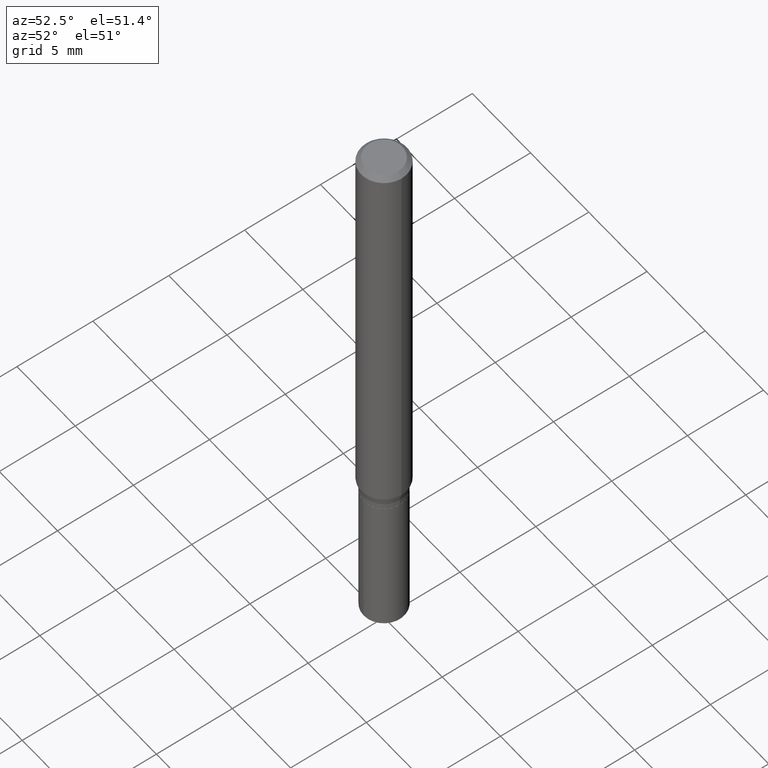
[diagram: clean part render]
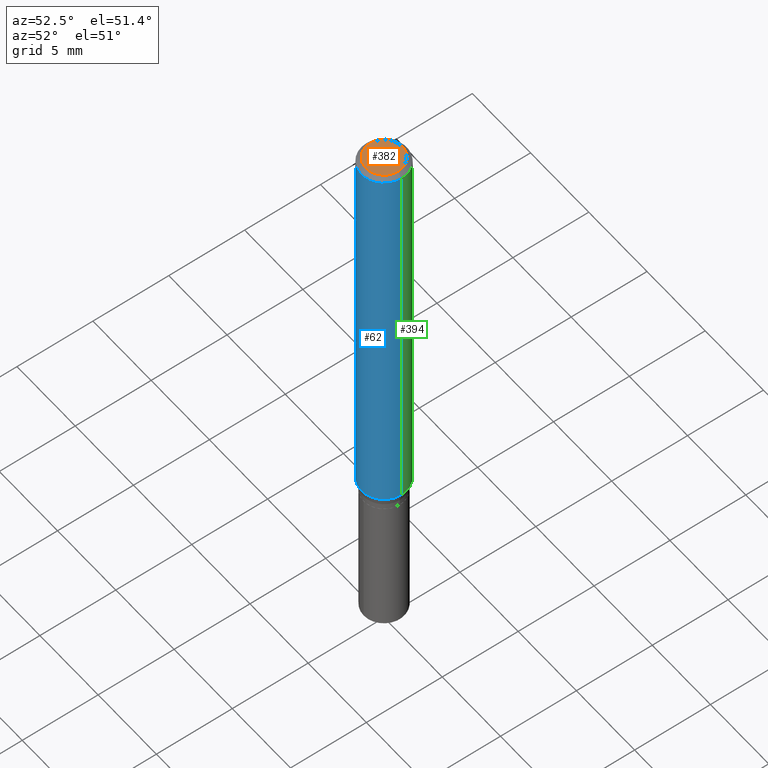
[diagram: same view with three faces highlighted in distinct colors, each labeled with its STEP entity id]
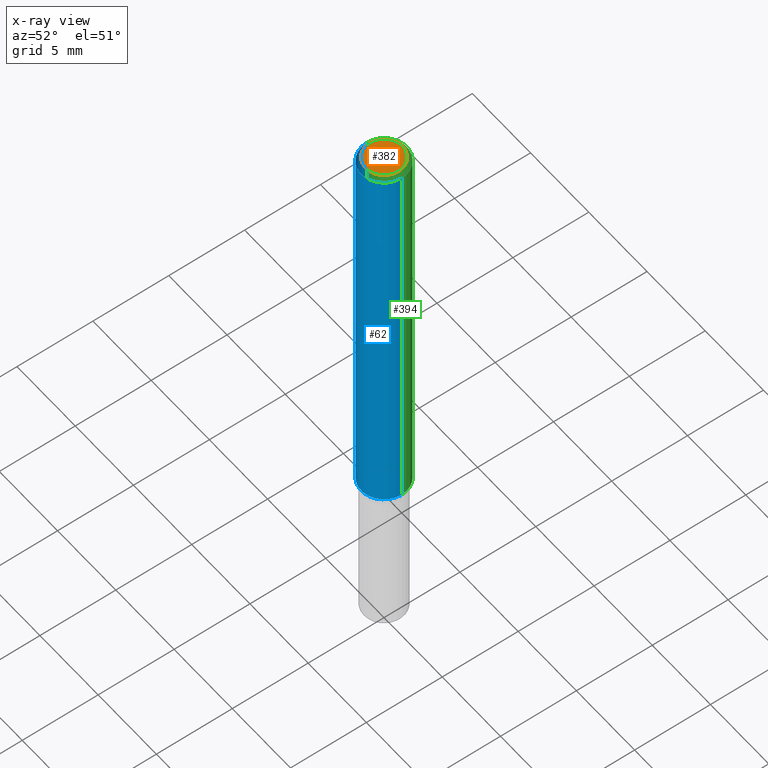
[diagram: x-ray of the same camera — body ghosted, the three highlighted faces saturated]
A machine part, auxiliary view with three faces highlighted in distinct colors.
The next image is the same camera in x-ray (body ghosted, the three faces saturated) — at least one of them is partly hidden behind the body in this view.
Their STEP definitions:

[orange] entity #382 — the highlighted planar face has unit normal (0, -0, -1).
#1 = ORIENTED_EDGE ( 'NONE', *, *, #217, .T. ) ;
#3 = CIRCLE ( 'NONE', #133, 0.04724000000000000421 ) ;
#5 = EDGE_LOOP ( 'NONE', ( #490, #1 ) ) ;
#42 = DIRECTION ( 'NONE',  ( 1.000000000000000000, -6.982962677686266711E-15, 4.876185090822587894E-29 ) ) ;
#70 = CARTESIAN_POINT ( 'NONE',  ( 0.04724000000000000421, -3.852183633974369345E-16, -3.380025165621689721E-19 ) ) ;
#74 = VERTEX_POINT ( 'NONE', #245 ) ;
#78 = PLANE ( 'NONE',  #328 ) ;
#133 = AXIS2_PLACEMENT_3D ( 'NONE', #286, #384, #42 ) ;
#175 = CARTESIAN_POINT ( 'NONE',  ( 8.265746106709734507E-48, -1.180129479067563789E-33, -3.380025165646692144E-19 ) ) ;
#217 = EDGE_CURVE ( 'NONE', #453, #74, #3, .T. ) ;
#245 = CARTESIAN_POINT ( 'NONE',  ( -0.04724000000000000421, 3.504923541997677355E-16, -3.380025165670481712E-19 ) ) ;
#286 = CARTESIAN_POINT ( 'NONE',  ( 8.265746106709734507E-48, -1.180129479067563789E-33, -3.380025165646692144E-19 ) ) ;
#306 = EDGE_CURVE ( 'NONE', #74, #453, #311, .T. ) ;
#311 = CIRCLE ( 'NONE', #436, 0.04724000000000000421 ) ;
#328 = AXIS2_PLACEMENT_3D ( 'NONE', #334, #479, #452 ) ;
#329 = DIRECTION ( 'NONE',  ( 1.000000000000000000, -6.982962677686266711E-15, 4.876185090822587894E-29 ) ) ;
#334 = CARTESIAN_POINT ( 'NONE',  ( 4.132873053354867254E-48, -5.900647395337818946E-34, -1.690012582823346072E-19 ) ) ;
#374 = FACE_OUTER_BOUND ( 'NONE', #5, .T. ) ;
#382 = ADVANCED_FACE ( 'NONE', ( #374 ), #78, .F. ) ;
#384 = DIRECTION ( 'NONE',  ( -2.445468806185136597E-29, 3.491481338843145583E-15, 1.000000000000000000 ) ) ;
#436 = AXIS2_PLACEMENT_3D ( 'NONE', #175, #473, #329 ) ;
#452 = DIRECTION ( 'NONE',  ( -1.000000000000000000, 6.982962677686265922E-15, -4.876176775795935793E-29 ) ) ;
#453 = VERTEX_POINT ( 'NONE', #70 ) ;
#473 = DIRECTION ( 'NONE',  ( -2.445468806185136597E-29, 3.491481338843145583E-15, 1.000000000000000000 ) ) ;
#479 = DIRECTION ( 'NONE',  ( 2.438088387897960049E-29, -3.491481338843145188E-15, -1.000000000000000000 ) ) ;
#490 = ORIENTED_EDGE ( 'NONE', *, *, #306, .T. ) ;

[blue] entity #62 — the highlighted cylindrical surface (edge-blend (fillet) strip) has radius 1.4999 mm, axis along (-0, 0, 1).
#8 = CARTESIAN_POINT ( 'NONE',  ( 0.000000000000000000, 0.000000000000000000, 0.000000000000000000 ) ) ;
#27 = ORIENTED_EDGE ( 'NONE', *, *, #279, .F. ) ;
#56 = AXIS2_PLACEMENT_3D ( 'NONE', #393, #130, #278 ) ;
#62 = ADVANCED_FACE ( 'NONE', ( #207 ), #315, .T. ) ;
#68 = ORIENTED_EDGE ( 'NONE', *, *, #297, .F. ) ;
#102 = CARTESIAN_POINT ( 'NONE',  ( 0.05905000000000006771, -4.123439461173745257E-16, 2.879382386107503723E-30 ) ) ;
#108 = LINE ( 'NONE', #257, #485 ) ;
#109 = CARTESIAN_POINT ( 'NONE',  ( -0.05904999999999999832, -1.443126456831318198E-15, -0.01181000000000007218 ) ) ;
#111 = EDGE_CURVE ( 'NONE', #271, #388, #141, .T. ) ;
#125 = AXIS2_PLACEMENT_3D ( 'NONE', #362, #367, #366 ) ;
#128 = DIRECTION ( 'NONE',  ( 1.000000000000000000, -6.982962677686266711E-15, 4.876176775795936353E-29 ) ) ;
#130 = DIRECTION ( 'NONE',  ( -2.445468806185136597E-29, 3.491481338843145583E-15, 1.000000000000000000 ) ) ;
#141 = CIRCLE ( 'NONE', #56, 0.05905000000000013016 ) ;
#154 = VECTOR ( 'NONE', #251, 39.37007874015748143 ) ;
#184 = AXIS2_PLACEMENT_3D ( 'NONE', #8, #464, #128 ) ;
#207 = FACE_OUTER_BOUND ( 'NONE', #381, .T. ) ;
#249 = DIRECTION ( 'NONE',  ( -2.445468806185136877E-29, 3.491481338843145188E-15, 1.000000000000000000 ) ) ;
#251 = DIRECTION ( 'NONE',  ( -2.445468806185136877E-29, 3.491481338843145188E-15, 1.000000000000000000 ) ) ;
#257 = CARTESIAN_POINT ( 'NONE',  ( -0.05905000000000006771, 4.195754854663396409E-16, -2.904631170795525045E-30 ) ) ;
#271 = VERTEX_POINT ( 'NONE', #438 ) ;
#278 = DIRECTION ( 'NONE',  ( 1.000000000000000000, -6.982962677686265133E-15, 0.000000000000000000 ) ) ;
#279 = EDGE_CURVE ( 'NONE', #430, #375, #410, .T. ) ;
#297 = EDGE_CURVE ( 'NONE', #271, #430, #108, .T. ) ;
#315 = CYLINDRICAL_SURFACE ( 'NONE', #184, 0.05905000000000006771 ) ;
#345 = ORIENTED_EDGE ( 'NONE', *, *, #111, .T. ) ;
#362 = CARTESIAN_POINT ( 'NONE',  ( 2.888098660104664204E-31, -4.123439461173780263E-17, -0.01181000000000007218 ) ) ;
#366 = DIRECTION ( 'NONE',  ( 1.000000000000000000, -6.982962677686266711E-15, 0.000000000000000000 ) ) ;
#367 = DIRECTION ( 'NONE',  ( -2.445468806185136597E-29, 3.491481338843145583E-15, 1.000000000000000000 ) ) ;
#369 = EDGE_CURVE ( 'NONE', #388, #375, #437, .T. ) ;
#375 = VERTEX_POINT ( 'NONE', #399 ) ;
#381 = EDGE_LOOP ( 'NONE', ( #68, #345, #444, #27 ) ) ;
#388 = VERTEX_POINT ( 'NONE', #443 ) ;
#393 = CARTESIAN_POINT ( 'NONE',  ( 2.580429534083956797E-29, -3.684169489983579231E-15, -1.055188079912315446 ) ) ;
#399 = CARTESIAN_POINT ( 'NONE',  ( 0.05904999999999999832, -4.535783407291118600E-16, -0.01181000000000007218 ) ) ;
#410 = CIRCLE ( 'NONE', #125, 0.05904999999999999832 ) ;
#430 = VERTEX_POINT ( 'NONE', #109 ) ;
#437 = LINE ( 'NONE', #102, #154 ) ;
#438 = CARTESIAN_POINT ( 'NONE',  ( -0.05905000000000013016, -3.264594004517239738E-15, -1.055188079912315446 ) ) ;
#443 = CARTESIAN_POINT ( 'NONE',  ( 0.05905000000000013016, -4.096513436100954151E-15, -1.055188079912315446 ) ) ;
#444 = ORIENTED_EDGE ( 'NONE', *, *, #369, .T. ) ;
#464 = DIRECTION ( 'NONE',  ( -2.445468806185136597E-29, 3.491481338843145583E-15, 1.000000000000000000 ) ) ;
#485 = VECTOR ( 'NONE', #249, 39.37007874015748143 ) ;

[green] entity #394 — the highlighted cylindrical surface (edge-blend (fillet) strip) has radius 1.4999 mm, axis along (-0, 0, 1).
#2 = DIRECTION ( 'NONE',  ( -2.445468806185136597E-29, 3.491481338843145583E-15, 1.000000000000000000 ) ) ;
#21 = DIRECTION ( 'NONE',  ( -2.445468806185136597E-29, 3.491481338843145583E-15, 1.000000000000000000 ) ) ;
#31 = CYLINDRICAL_SURFACE ( 'NONE', #116, 0.05905000000000006771 ) ;
#39 = ORIENTED_EDGE ( 'NONE', *, *, #97, .F. ) ;
#43 = ORIENTED_EDGE ( 'NONE', *, *, #369, .F. ) ;
#67 = FACE_OUTER_BOUND ( 'NONE', #346, .T. ) ;
#97 = EDGE_CURVE ( 'NONE', #375, #430, #458, .T. ) ;
#102 = CARTESIAN_POINT ( 'NONE',  ( 0.05905000000000006771, -4.123439461173745257E-16, 2.879382386107503723E-30 ) ) ;
#104 = DIRECTION ( 'NONE',  ( 1.000000000000000000, -6.982962677686265133E-15, 0.000000000000000000 ) ) ;
#106 = CIRCLE ( 'NONE', #371, 0.05905000000000013016 ) ;
#108 = LINE ( 'NONE', #257, #485 ) ;
#109 = CARTESIAN_POINT ( 'NONE',  ( -0.05904999999999999832, -1.443126456831318198E-15, -0.01181000000000007218 ) ) ;
#112 = DIRECTION ( 'NONE',  ( -2.445468806185136597E-29, 3.491481338843145583E-15, 1.000000000000000000 ) ) ;
#116 = AXIS2_PLACEMENT_3D ( 'NONE', #231, #112, #261 ) ;
#154 = VECTOR ( 'NONE', #251, 39.37007874015748143 ) ;
#161 = DIRECTION ( 'NONE',  ( 1.000000000000000000, -6.982962677686266711E-15, 0.000000000000000000 ) ) ;
#231 = CARTESIAN_POINT ( 'NONE',  ( 0.000000000000000000, 0.000000000000000000, 0.000000000000000000 ) ) ;
#248 = ORIENTED_EDGE ( 'NONE', *, *, #324, .T. ) ;
#249 = DIRECTION ( 'NONE',  ( -2.445468806185136877E-29, 3.491481338843145188E-15, 1.000000000000000000 ) ) ;
#251 = DIRECTION ( 'NONE',  ( -2.445468806185136877E-29, 3.491481338843145188E-15, 1.000000000000000000 ) ) ;
#257 = CARTESIAN_POINT ( 'NONE',  ( -0.05905000000000006771, 4.195754854663396409E-16, -2.904631170795525045E-30 ) ) ;
#261 = DIRECTION ( 'NONE',  ( 1.000000000000000000, -6.982962677686266711E-15, 4.876176775795936353E-29 ) ) ;
#271 = VERTEX_POINT ( 'NONE', #438 ) ;
#297 = EDGE_CURVE ( 'NONE', #271, #430, #108, .T. ) ;
#309 = CARTESIAN_POINT ( 'NONE',  ( 2.888098660104664204E-31, -4.123439461173780263E-17, -0.01181000000000007218 ) ) ;
#320 = AXIS2_PLACEMENT_3D ( 'NONE', #309, #2, #161 ) ;
#323 = CARTESIAN_POINT ( 'NONE',  ( 2.580429534083956797E-29, -3.684169489983579231E-15, -1.055188079912315446 ) ) ;
#324 = EDGE_CURVE ( 'NONE', #388, #271, #106, .T. ) ;
#346 = EDGE_LOOP ( 'NONE', ( #248, #487, #39, #43 ) ) ;
#369 = EDGE_CURVE ( 'NONE', #388, #375, #437, .T. ) ;
#371 = AXIS2_PLACEMENT_3D ( 'NONE', #323, #21, #104 ) ;
#375 = VERTEX_POINT ( 'NONE', #399 ) ;
#388 = VERTEX_POINT ( 'NONE', #443 ) ;
#394 = ADVANCED_FACE ( 'NONE', ( #67 ), #31, .T. ) ;
#399 = CARTESIAN_POINT ( 'NONE',  ( 0.05904999999999999832, -4.535783407291118600E-16, -0.01181000000000007218 ) ) ;
#430 = VERTEX_POINT ( 'NONE', #109 ) ;
#437 = LINE ( 'NONE', #102, #154 ) ;
#438 = CARTESIAN_POINT ( 'NONE',  ( -0.05905000000000013016, -3.264594004517239738E-15, -1.055188079912315446 ) ) ;
#443 = CARTESIAN_POINT ( 'NONE',  ( 0.05905000000000013016, -4.096513436100954151E-15, -1.055188079912315446 ) ) ;
#458 = CIRCLE ( 'NONE', #320, 0.05904999999999999832 ) ;
#485 = VECTOR ( 'NONE', #249, 39.37007874015748143 ) ;
#487 = ORIENTED_EDGE ( 'NONE', *, *, #297, .T. ) ;